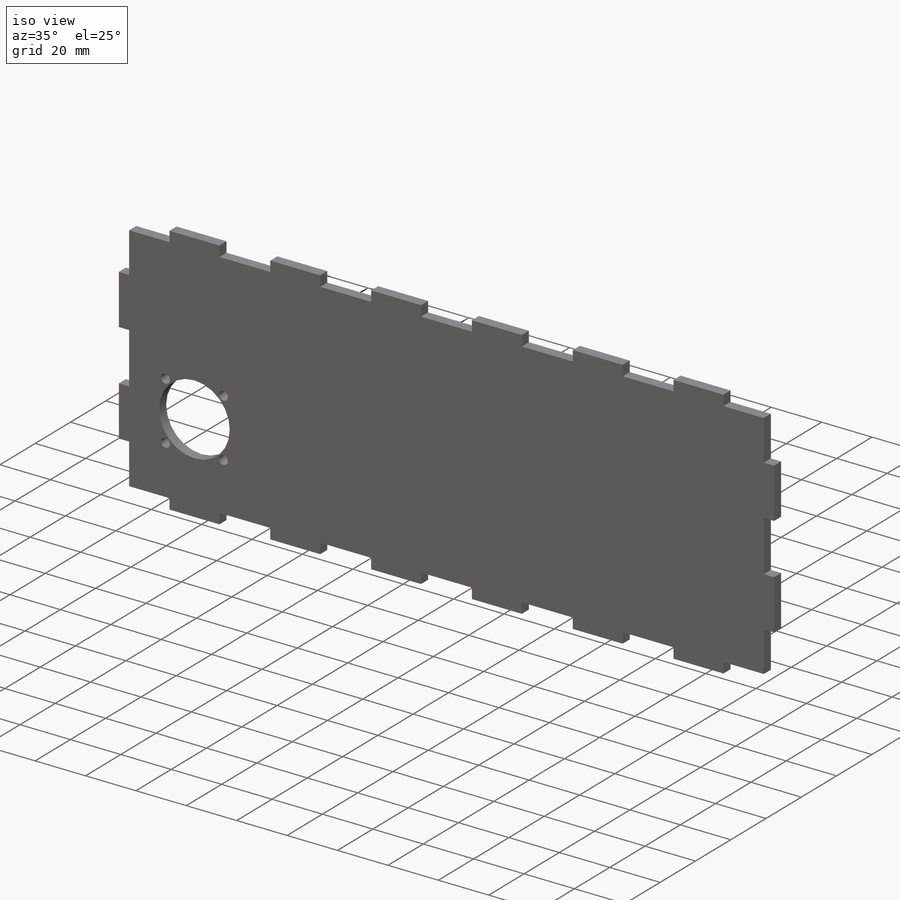
[diagram: iso view]
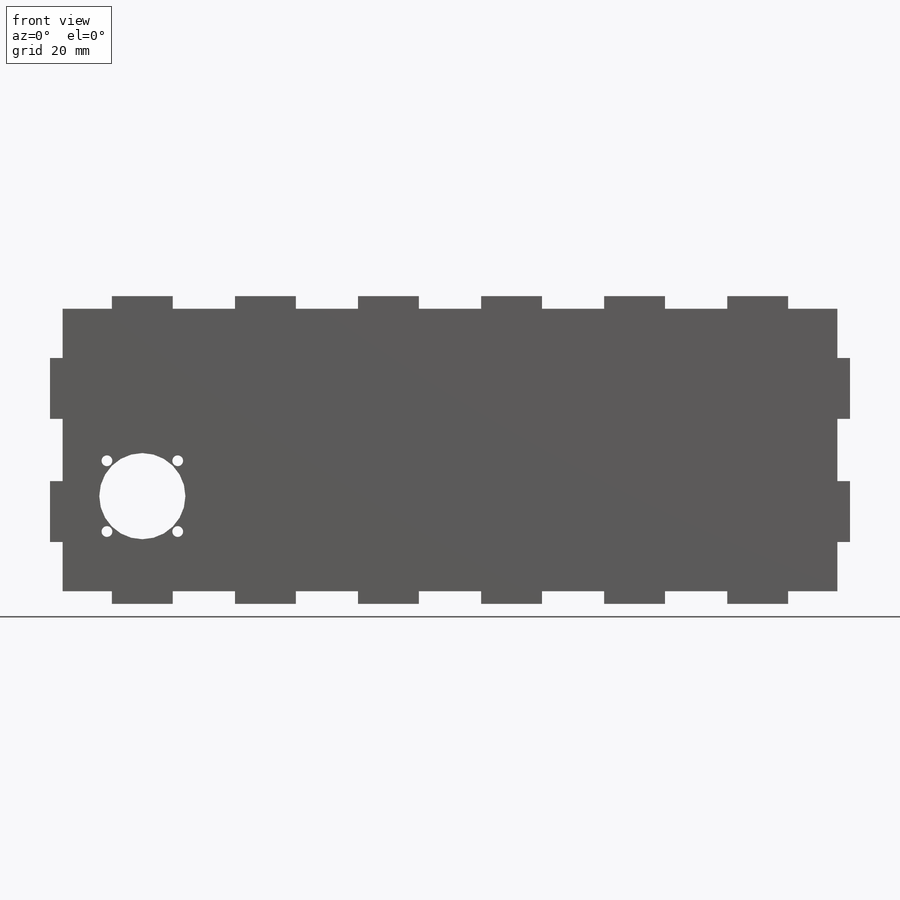
[diagram: front view]
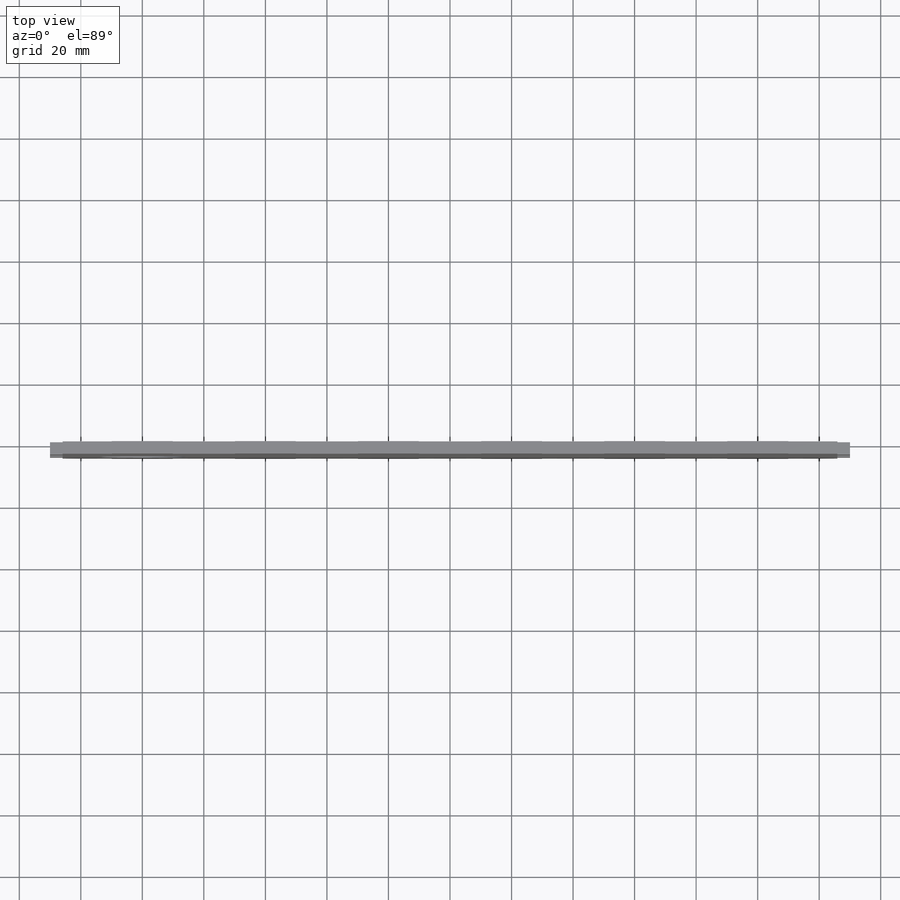
[diagram: top view]
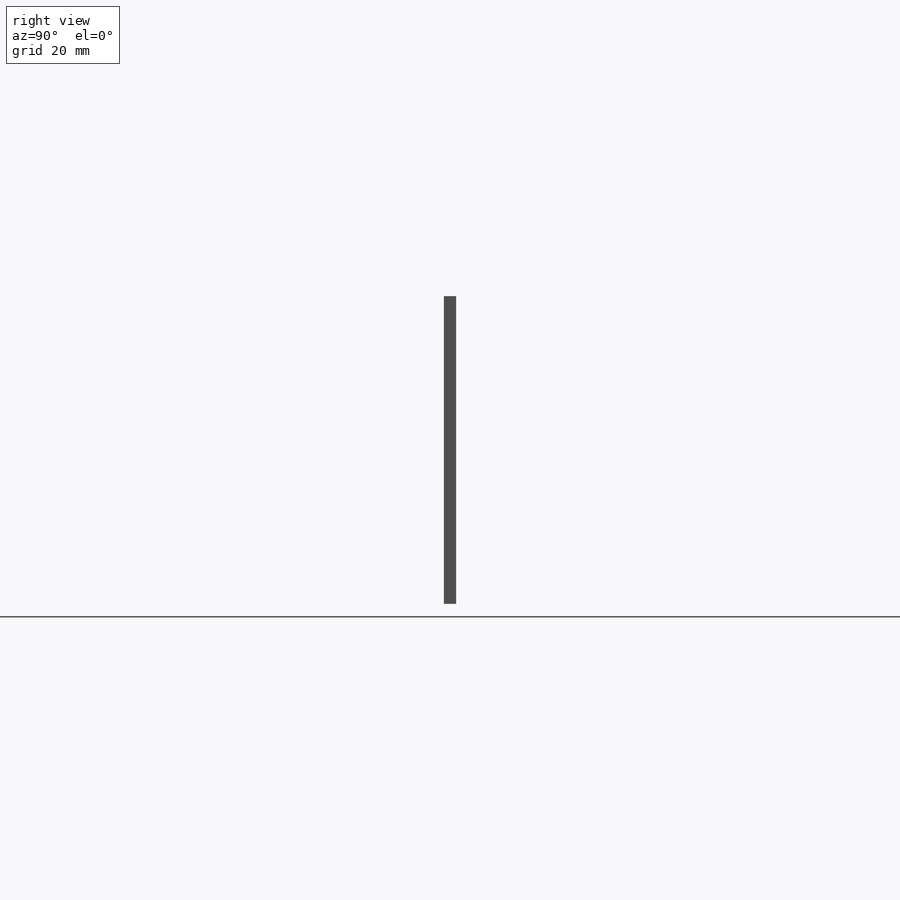
[diagram: right view]
SOLIDWORKS PART (.sldprt)
format: sldprt  version: not decoded by parser v0  size: 264,192 bytes
history: native  units: mm
features: sketch x4, cut_extrude x3, pattern_linear x2, mirror x2, material x1, extrude x1 (+13 scaffold rows collapsed)
feature tree (26):
  scaffold x13  (default folders/planes/origin — collapsed)
  material  "Material <not specified>"
  sketch  "Sketch2"  dims[D1=100.0mm D2=260.0mm]
  extrude  "Boss-Extrude1"  Depth=4mm
  sketch  "Sketch3"  dims[D1=4.1mm D2=20.2mm D3=0.1mm]
  cut_extrude  "Cut-Extrude1"  Depth=4mm
  pattern_linear  "LPattern1"  Count1=3 Count2=1 Spacing1=40mm Spacing2=10mm
  mirror  "Mirror1"
  sketch  "Sketch4"  dims[c1.D1=20.2mm c1.D2=0.0mm c1.D3=4.1mm c2.D2=0.1mm]
  cut_extrude  "Cut-Extrude2"  Depth=4mm
  pattern_linear  "LPattern2"  Count1=7 Count2=1 Spacing1=40mm Spacing2=10mm
  mirror  "Mirror2"
  sketch  "Sketch5"  dims[c1.D1=3.5mm c1.D2=3.5mm c1.D3=3.5mm c1.D4=3.5mm c1.D5=28.0mm c1.D16=29.0mm c1.D6=35.0mm c1.D7=30.0mm c1.D8=23.0mm c1.D9=23.0mm c1.D10=23.0mm c1.D11=23.0mm c1.D12=11.5mm c1.D13=11.5mm c1.D14=11.5mm c1.D15=11.5mm c2.D16=23.0mm c2.D11=11.5mm]
  cut_extrude  "Cut-Extrude3"  [1 undecoded]
decode coverage: 9 of 12 modeling features carry decoded parameters
note: 1 parameter value undecoded
note: suppression state not decoded; provenance and decode notes live in map.json
